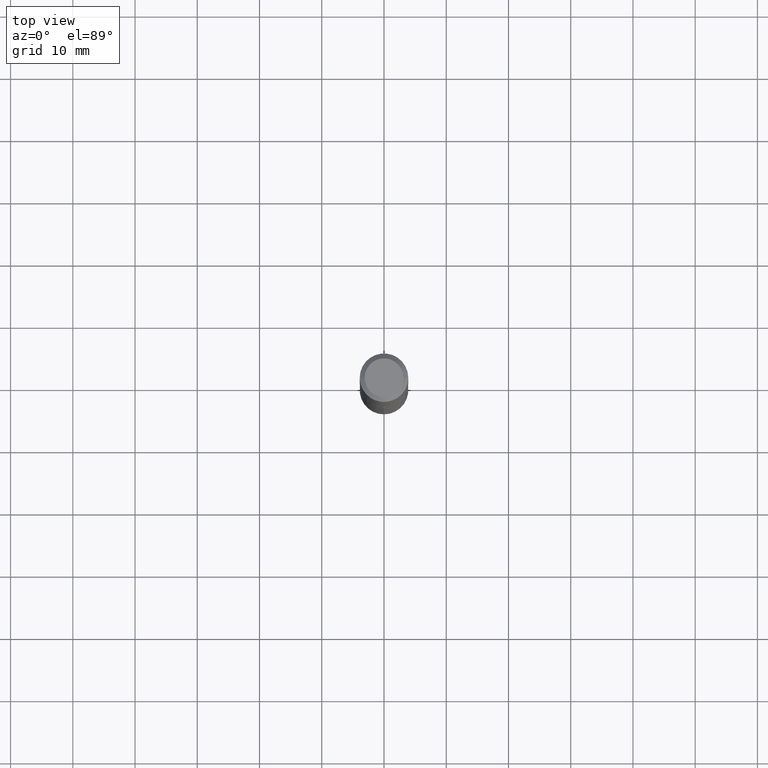
[diagram: clean part render]
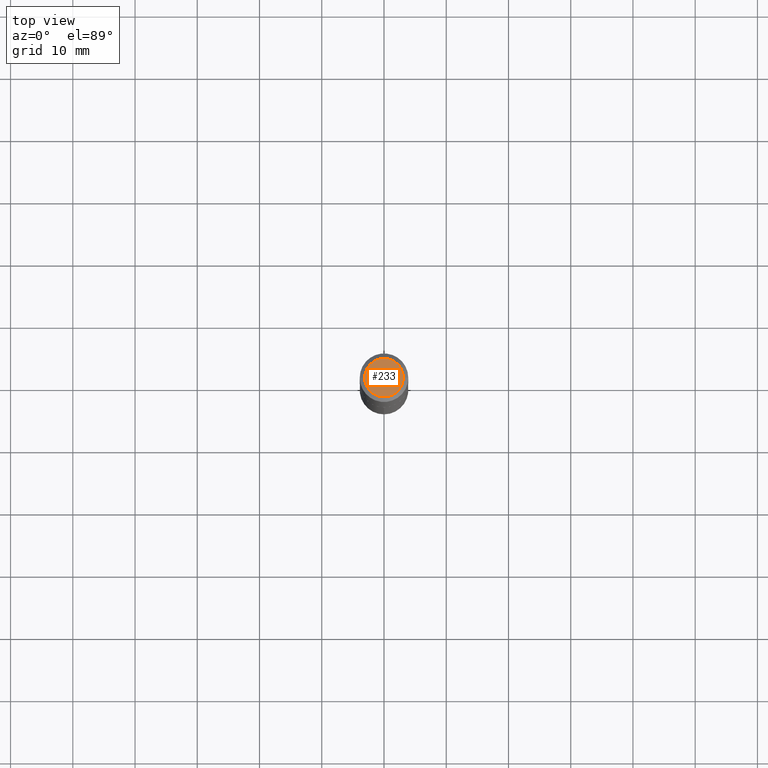
[diagram: same view with one face highlighted and labeled with its STEP entity id]
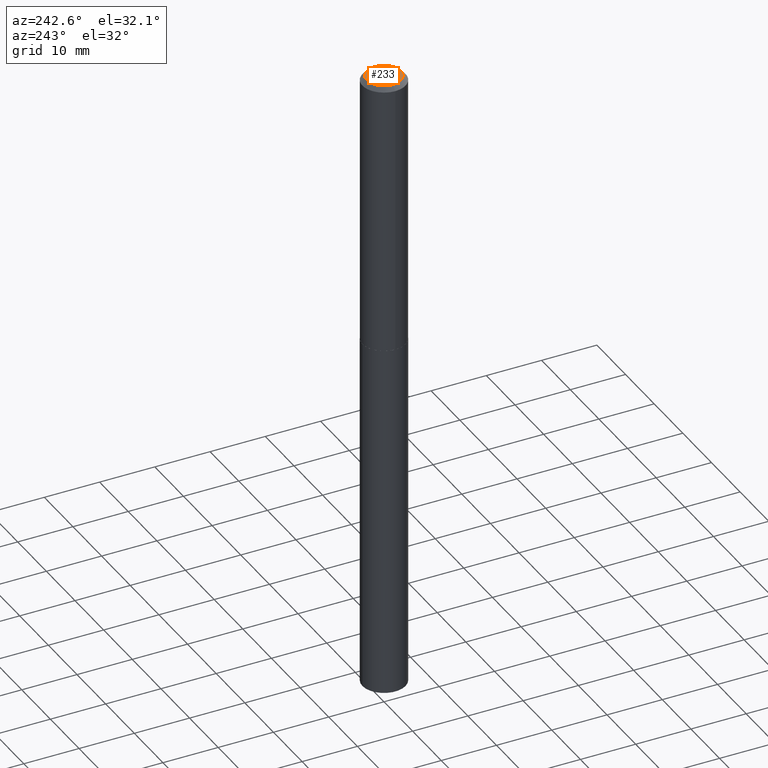
[diagram: same view with one face highlighted and labeled with its STEP entity id]
A machine part, top view. The second image highlights one B-rep face of the part: STEP entity #233.
A second angle (auxiliary view) of the same face is appended — the face is thin or edge-on in the first view.
In plain terms, the highlighted planar face has unit normal (0, -0, -1).
Its self-contained STEP definition (entity closure, byte-faithful):
#1 = DIRECTION ( 'NONE',  ( 2.438088387897960049E-29, -3.491481338843145188E-15, -1.000000000000000000 ) ) ;
#31 = VERTEX_POINT ( 'NONE', #290 ) ;
#54 = EDGE_CURVE ( 'NONE', #31, #100, #282, .T. ) ;
#62 = ORIENTED_EDGE ( 'NONE', *, *, #215, .T. ) ;
#67 = EDGE_LOOP ( 'NONE', ( #245, #62 ) ) ;
#100 = VERTEX_POINT ( 'NONE', #126 ) ;
#104 = AXIS2_PLACEMENT_3D ( 'NONE', #148, #1, #303 ) ;
#108 = CIRCLE ( 'NONE', #275, 0.1222999999999999782 ) ;
#126 = CARTESIAN_POINT ( 'NONE',  ( 0.1222999999999999782, -1.000788582262062883E-15, 2.449293598359575941E-19 ) ) ;
#128 = DIRECTION ( 'NONE',  ( -2.445468806185136597E-29, 3.491481338843145583E-15, 1.000000000000000000 ) ) ;
#143 = CARTESIAN_POINT ( 'NONE',  ( -5.989671091818699506E-48, 8.551662891794013634E-34, 2.449293598294725547E-19 ) ) ;
#148 = CARTESIAN_POINT ( 'NONE',  ( -2.994835545909349753E-48, 4.275831445897006817E-34, 1.224646799147362773E-19 ) ) ;
#151 = CARTESIAN_POINT ( 'NONE',  ( -5.989671091818699506E-48, 8.551662891794013634E-34, 2.449293598294725547E-19 ) ) ;
#215 = EDGE_CURVE ( 'NONE', #100, #31, #108, .T. ) ;
#233 = ADVANCED_FACE ( 'NONE', ( #254 ), #272, .F. ) ;
#242 = AXIS2_PLACEMENT_3D ( 'NONE', #143, #381, #357 ) ;
#245 = ORIENTED_EDGE ( 'NONE', *, *, #54, .T. ) ;
#254 = FACE_OUTER_BOUND ( 'NONE', #67, .T. ) ;
#272 = PLANE ( 'NONE',  #104 ) ;
#275 = AXIS2_PLACEMENT_3D ( 'NONE', #151, #128, #299 ) ;
#282 = CIRCLE ( 'NONE', #242, 0.1222999999999999782 ) ;
#290 = CARTESIAN_POINT ( 'NONE',  ( -0.1222999999999999782, 9.085707314004538757E-16, 2.449293598233094825E-19 ) ) ;
#299 = DIRECTION ( 'NONE',  ( 1.000000000000000000, -6.982962677686266711E-15, 4.876172253785905870E-29 ) ) ;
#303 = DIRECTION ( 'NONE',  ( -1.000000000000000000, 6.982962677686265922E-15, -4.876176775795935793E-29 ) ) ;
#357 = DIRECTION ( 'NONE',  ( 1.000000000000000000, -6.982962677686266711E-15, 4.876172253785905870E-29 ) ) ;
#381 = DIRECTION ( 'NONE',  ( -2.445468806185136597E-29, 3.491481338843145583E-15, 1.000000000000000000 ) ) ;